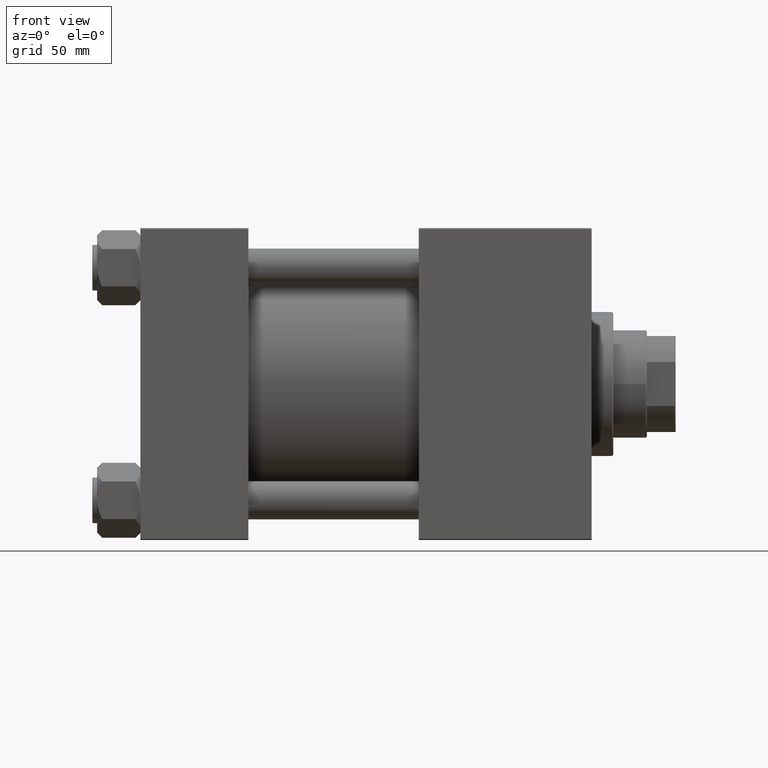
[diagram: clean part render]
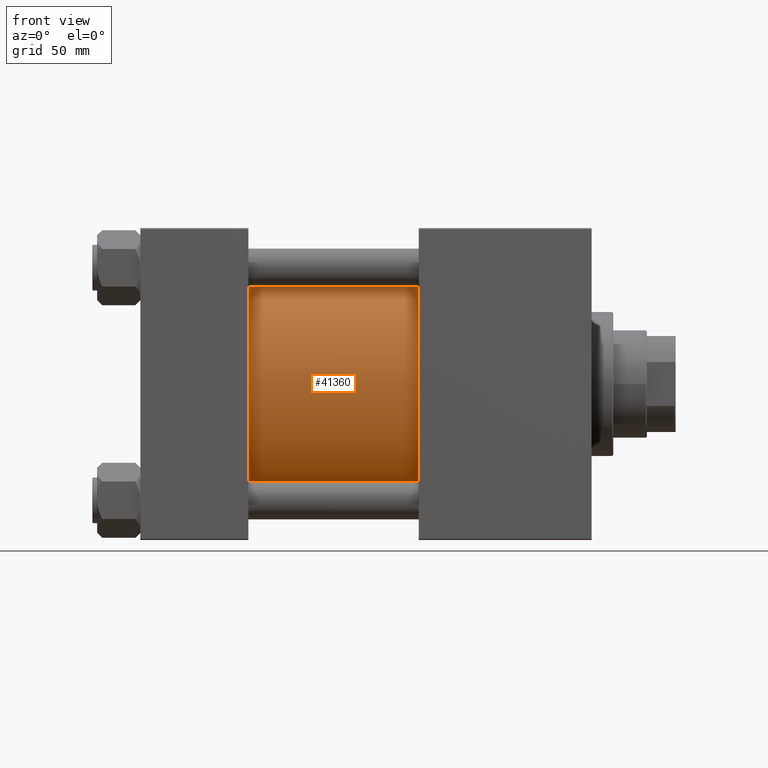
[diagram: same view with one face highlighted and labeled with its STEP entity id]
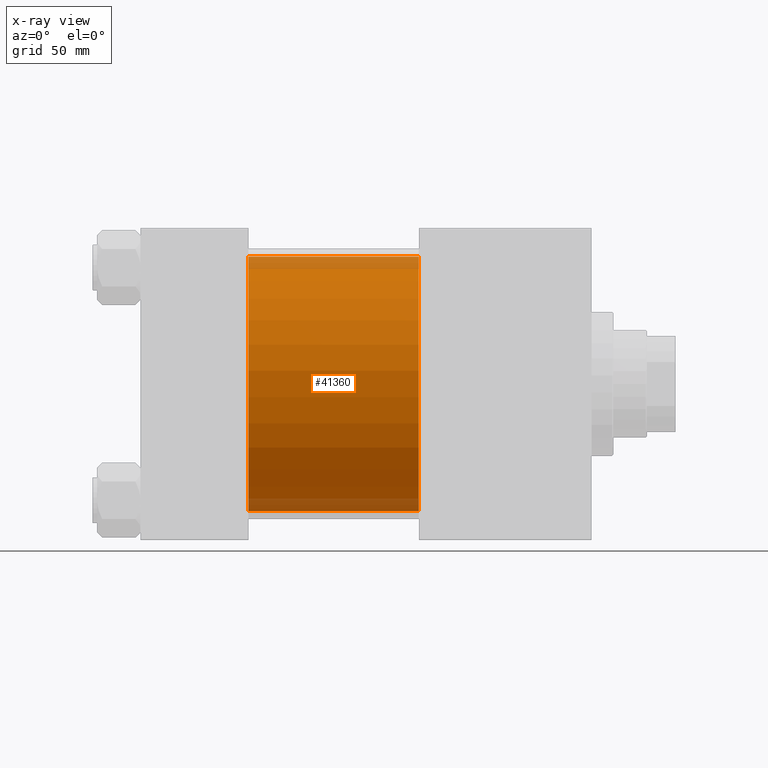
[diagram: x-ray of the same camera — body ghosted, the highlighted face saturated]
A machine part, front view. The second image highlights one B-rep face of the part: STEP entity #41360.
The next image is the same camera in x-ray: the body ghosted, the highlighted face saturated — about 10% of this face is hidden behind the body in this view.
In plain terms, the highlighted cylindrical surface (partial cylindrical patch) has radius 53 mm, axis along (-1, -0, -0).
Its self-contained STEP definition (entity closure, byte-faithful):
#268 = AXIS2_PLACEMENT_3D ( 'NONE', #30255, #29516, #45872 ) ;
#1222 = AXIS2_PLACEMENT_3D ( 'NONE', #46416, #26967, #2653 ) ;
#2567 = EDGE_CURVE ( 'NONE', #11213, #37577, #44720, .T. ) ;
#2653 = DIRECTION ( 'NONE',  ( 0.000000000000000000, 0.000000000000000000, 1.000000000000000000 ) ) ;
#4988 = VECTOR ( 'NONE', #25280, 1000.000000000000000 ) ;
#8899 = EDGE_CURVE ( 'NONE', #15246, #37577, #16665, .T. ) ;
#9662 = CARTESIAN_POINT ( 'NONE',  ( 115.9999999999999858, 3.888542821515762466E-15, -53.00000000000000711 ) ) ;
#9851 = CARTESIAN_POINT ( 'NONE',  ( 45.00000000000000000, -2.602085213965210642E-15, 53.00000000000000711 ) ) ;
#11213 = VERTEX_POINT ( 'NONE', #21146 ) ;
#13327 = CIRCLE ( 'NONE', #31288, 53.00000000000000711 ) ;
#14460 = CYLINDRICAL_SURFACE ( 'NONE', #1222, 53.00000000000000711 ) ;
#15246 = VERTEX_POINT ( 'NONE', #9851 ) ;
#16665 = CIRCLE ( 'NONE', #268, 53.00000000000000711 ) ;
#18409 = DIRECTION ( 'NONE',  ( 0.000000000000000000, 0.000000000000000000, -1.000000000000000000 ) ) ;
#19808 = ORIENTED_EDGE ( 'NONE', *, *, #8899, .T. ) ;
#20098 = EDGE_CURVE ( 'NONE', #42835, #15246, #30218, .T. ) ;
#20203 = EDGE_LOOP ( 'NONE', ( #21859, #44776, #29224, #19808 ) ) ;
#21146 = CARTESIAN_POINT ( 'NONE',  ( 115.9999999999999858, 3.888542821515762466E-15, -53.00000000000000711 ) ) ;
#21813 = VECTOR ( 'NONE', #49939, 1000.000000000000000 ) ;
#21859 = ORIENTED_EDGE ( 'NONE', *, *, #2567, .F. ) ;
#22371 = FACE_OUTER_BOUND ( 'NONE', #20203, .T. ) ;
#25280 = DIRECTION ( 'NONE',  ( -1.000000000000000000, -0.000000000000000000, -0.000000000000000000 ) ) ;
#26586 = CARTESIAN_POINT ( 'NONE',  ( 115.9999999999999858, -2.602085213965210642E-15, 0.000000000000000000 ) ) ;
#26967 = DIRECTION ( 'NONE',  ( -1.000000000000000000, -0.000000000000000000, -0.000000000000000000 ) ) ;
#29224 = ORIENTED_EDGE ( 'NONE', *, *, #20098, .T. ) ;
#29516 = DIRECTION ( 'NONE',  ( 1.000000000000000000, -0.000000000000000000, 0.000000000000000000 ) ) ;
#30218 = LINE ( 'NONE', #42239, #21813 ) ;
#30255 = CARTESIAN_POINT ( 'NONE',  ( 45.00000000000000000, -2.602085213965210642E-15, 0.000000000000000000 ) ) ;
#31288 = AXIS2_PLACEMENT_3D ( 'NONE', #26586, #41204, #18409 ) ;
#31817 = CARTESIAN_POINT ( 'NONE',  ( 45.00000000000000000, 3.888542821515762466E-15, -53.00000000000000711 ) ) ;
#32458 = EDGE_CURVE ( 'NONE', #42835, #11213, #13327, .T. ) ;
#37577 = VERTEX_POINT ( 'NONE', #31817 ) ;
#41204 = DIRECTION ( 'NONE',  ( 1.000000000000000000, 0.000000000000000000, 0.000000000000000000 ) ) ;
#41360 = ADVANCED_FACE ( 'NONE', ( #22371 ), #14460, .T. ) ;
#42239 = CARTESIAN_POINT ( 'NONE',  ( 115.9999999999999858, -2.602085213965210642E-15, 53.00000000000000711 ) ) ;
#42835 = VERTEX_POINT ( 'NONE', #47566 ) ;
#44720 = LINE ( 'NONE', #9662, #4988 ) ;
#44776 = ORIENTED_EDGE ( 'NONE', *, *, #32458, .F. ) ;
#45872 = DIRECTION ( 'NONE',  ( 0.000000000000000000, 0.000000000000000000, 1.000000000000000000 ) ) ;
#46416 = CARTESIAN_POINT ( 'NONE',  ( 115.9999999999999858, -2.602085213965210642E-15, 0.000000000000000000 ) ) ;
#47566 = CARTESIAN_POINT ( 'NONE',  ( 115.9999999999999858, -2.602085213965210642E-15, 53.00000000000000711 ) ) ;
#49939 = DIRECTION ( 'NONE',  ( -1.000000000000000000, -0.000000000000000000, -0.000000000000000000 ) ) ;